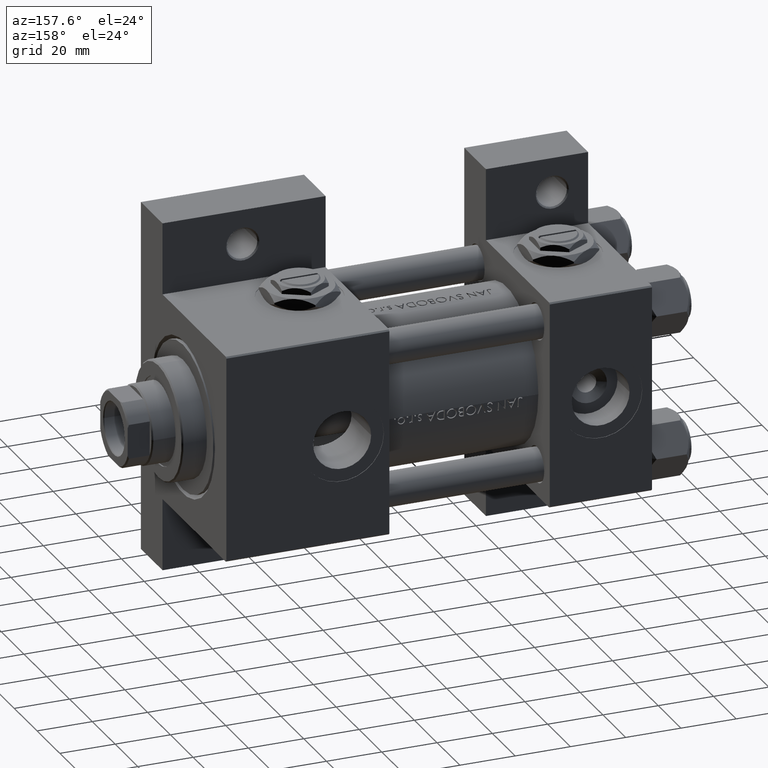
[diagram: clean part render]
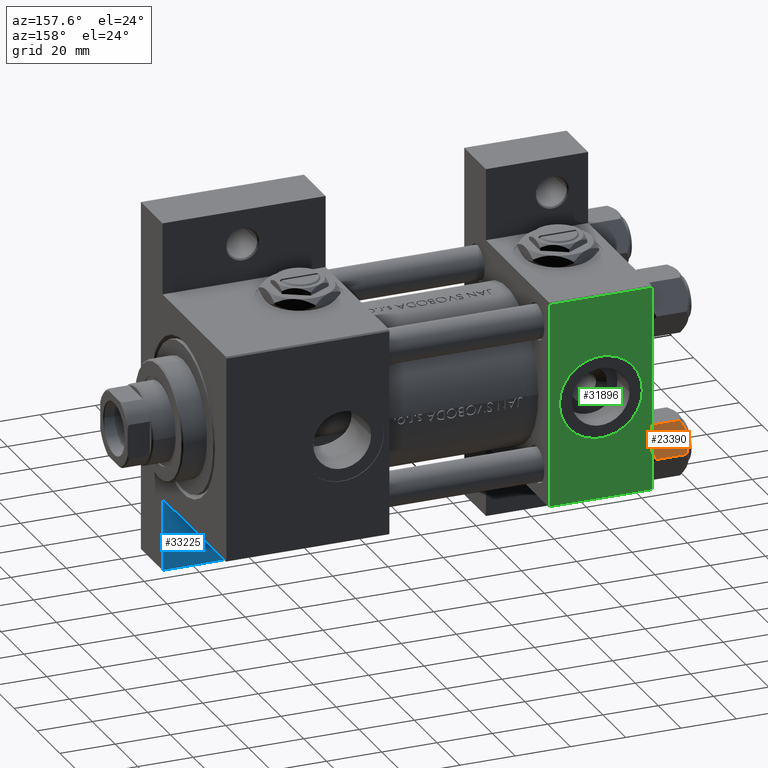
[diagram: same view with three faces highlighted in distinct colors, each labeled with its STEP entity id]
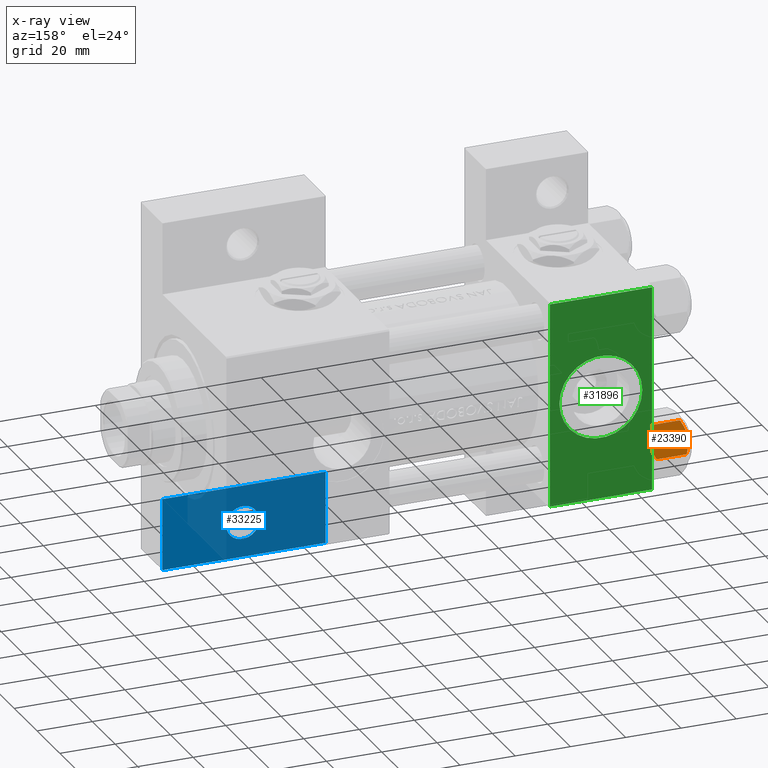
[diagram: x-ray of the same camera — body ghosted, the three highlighted faces saturated]
A machine part, auxiliary view with three faces highlighted in distinct colors.
The next image is the same camera in x-ray (body ghosted, the three faces saturated) — at least one of them is partly hidden behind the body in this view.
Their STEP definitions:

[orange] entity #23390 — the highlighted planar face has unit normal (0, -0.866, -0.5).
#18 = CARTESIAN_POINT ( 'NONE',  ( -10.69662495661650325, 1.599332489581336780, -0.7114554706434498277 ) ) ;
#729 = VECTOR ( 'NONE', #25414, 1000.000000000000000 ) ;
#730 = CARTESIAN_POINT ( 'NONE',  ( -5.809999999999997833, 10.06321519197518022, -12.44321519197518455 ) ) ;
#2301 = EDGE_CURVE ( 'NONE', #19643, #12234, #38741, .T. ) ;
#2560 = CARTESIAN_POINT ( 'NONE',  ( -11.61999999999999922, 6.288644352490894150E-15, -14.00000000000000000 ) ) ;
#3538 = PLANE ( 'NONE',  #7698 ) ;
#4209 = ORIENTED_EDGE ( 'NONE', *, *, #19684, .T. ) ;
#6366 = CARTESIAN_POINT ( 'NONE',  ( -5.809999999999997833, 10.06321519197518022, -1.556784808024815447 ) ) ;
#6718 = CARTESIAN_POINT ( 'NONE',  ( -5.809999999999997833, 10.06321519197518022, -1.556784808024815447 ) ) ;
#7129 = LINE ( 'NONE', #29691, #42000 ) ;
#7213 = CARTESIAN_POINT ( 'NONE',  ( -5.809999999999997833, 10.06321519197518022, -12.44321519197518455 ) ) ;
#7698 = AXIS2_PLACEMENT_3D ( 'NONE', #2560, #10588, #33392 ) ;
#8016 = EDGE_CURVE ( 'NONE', #12234, #28816, #30585, .T. ) ;
#9290 = CARTESIAN_POINT ( 'NONE',  ( -8.715000000000001634, 5.031607595987591885, 0.000000000000000000 ) ) ;
#9586 = EDGE_CURVE ( 'NONE', #20137, #46045, #22152, .T. ) ;
#10250 = CARTESIAN_POINT ( 'NONE',  ( -6.731401448974986934, 8.467301068182916168, -0.7141438259524663934 ) ) ;
#10588 = DIRECTION ( 'NONE',  ( 0.8660254037844385966, -0.5000000000000002220, 0.000000000000000000 ) ) ;
#12234 = VERTEX_POINT ( 'NONE', #42717 ) ;
#12841 = CARTESIAN_POINT ( 'NONE',  ( -8.460569896449618099, 5.472293462311865753, 2.204732646931026331E-15 ) ) ;
#13168 = ORIENTED_EDGE ( 'NONE', *, *, #47236, .F. ) ;
#13487 = CARTESIAN_POINT ( 'NONE',  ( -9.729165168613649328, 3.275021996682086822, -13.80960203119265906 ) ) ;
#14859 = CARTESIAN_POINT ( 'NONE',  ( -11.61999999999999922, 6.301834029662224111E-15, -1.556784808024812117 ) ) ;
#15109 = CARTESIAN_POINT ( 'NONE',  ( -9.716999946243698005, 3.296092779912228377, -0.1545239700039844066 ) ) ;
#19080 = CARTESIAN_POINT ( 'NONE',  ( -8.715000000000001634, 5.031607595987591885, -14.00000000000000000 ) ) ;
#19421 = CARTESIAN_POINT ( 'NONE',  ( -11.61999999999999922, 6.301834029662224111E-15, -1.556784808024812117 ) ) ;
#19643 = VERTEX_POINT ( 'NONE', #29439 ) ;
#19684 = EDGE_CURVE ( 'NONE', #19643, #46045, #7129, .T. ) ;
#20137 = VERTEX_POINT ( 'NONE', #9290 ) ;
#21736 = CARTESIAN_POINT ( 'NONE',  ( -9.227666995912096937, 4.143642311704127223, -13.96005881939308857 ) ) ;
#21770 = CARTESIAN_POINT ( 'NONE',  ( -7.455303369716805406, 7.213466161761384221, -0.3002673809867381083 ) ) ;
#22014 = CARTESIAN_POINT ( 'NONE',  ( -8.202333004087897450, 5.919572880271055659, -0.03994118060690795419 ) ) ;
#22152 = B_SPLINE_CURVE_WITH_KNOTS ( 'NONE', 3,
 ( #34398, #34639, #15109, #18, #45422, #14859 ),
 .UNSPECIFIED., .F., .F.,
 ( 4, 2, 4 ),
 ( 0.006022845781655589842, 0.009013049135303635023, 0.01200325248895167847 ),
 .UNSPECIFIED. ) ;
#22426 = DIRECTION ( 'NONE',  ( -0.000000000000000000, -0.000000000000000000, 1.000000000000000000 ) ) ;
#23390 = ADVANCED_FACE ( 'NONE', ( #44674 ), #3538, .F. ) ;
#24401 = B_SPLINE_CURVE_WITH_KNOTS ( 'NONE', 3,
 ( #6718, #27865, #10250, #21770, #29286, #22014, #12841, #37069 ),
 .UNSPECIFIED., .F., .F.,
 ( 4, 2, 2, 4 ),
 ( 2.544312114902182352E-07, 0.003011550106433540791, 0.004517197944044565316, 0.006022845781655589842 ),
 .UNSPECIFIED. ) ;
#25414 = DIRECTION ( 'NONE',  ( -0.000000000000000000, -0.000000000000000000, 1.000000000000000000 ) ) ;
#25899 = LINE ( 'NONE', #44216, #729 ) ;
#27463 = ORIENTED_EDGE ( 'NONE', *, *, #8016, .F. ) ;
#27865 = CARTESIAN_POINT ( 'NONE',  ( -6.265545725125282850, 9.274186850887385702, -1.101239082899535537 ) ) ;
#28026 = EDGE_LOOP ( 'NONE', ( #43794, #4209, #48133, #37030, #13168, #27463 ) ) ;
#28511 = CARTESIAN_POINT ( 'NONE',  ( -8.969430103550378064, 4.590921729663314466, -14.00000000000000178 ) ) ;
#28575 = EDGE_CURVE ( 'NONE', #41289, #20137, #24401, .T. ) ;
#28816 = VERTEX_POINT ( 'NONE', #7213 ) ;
#29286 = CARTESIAN_POINT ( 'NONE',  ( -7.700834831386344170, 6.788193195293096949, -0.1903979688073418330 ) ) ;
#29439 = CARTESIAN_POINT ( 'NONE',  ( -11.61999999999999922, 6.270720075510426383E-15, -12.44321519197518811 ) ) ;
#29691 = CARTESIAN_POINT ( 'NONE',  ( -11.61999999999999922, 6.288644352490894150E-15, -14.00000000000000000 ) ) ;
#30585 = B_SPLINE_CURVE_WITH_KNOTS ( 'NONE', 3,
 ( #19080, #42874, #31079, #31580, #38621, #730 ),
 .UNSPECIFIED., .F., .F.,
 ( 4, 2, 4 ),
 ( 0.006022845781655582903, 0.009013049135303629819, 0.01200325248895167847 ),
 .UNSPECIFIED. ) ;
#31079 = CARTESIAN_POINT ( 'NONE',  ( -7.713000053756302599, 6.767122412062954062, -13.84547602999601601 ) ) ;
#31580 = CARTESIAN_POINT ( 'NONE',  ( -6.733375043383492020, 8.463882702393842550, -13.28854452935654962 ) ) ;
#33392 = DIRECTION ( 'NONE',  ( 0.5000000000000001110, 0.8660254037844384856, 0.000000000000000000 ) ) ;
#34398 = CARTESIAN_POINT ( 'NONE',  ( -8.715000000000001634, 5.031607595987591885, 0.000000000000000000 ) ) ;
#34639 = CARTESIAN_POINT ( 'NONE',  ( -9.220295946303428636, 4.156409344131454020, 2.043043468777371629E-15 ) ) ;
#36533 = CARTESIAN_POINT ( 'NONE',  ( -8.715000000000001634, 5.031607595987591885, -14.00000000000000000 ) ) ;
#36797 = CARTESIAN_POINT ( 'NONE',  ( -11.61999999999999922, 6.270720075510426383E-15, -12.44321519197518811 ) ) ;
#37030 = ORIENTED_EDGE ( 'NONE', *, *, #28575, .F. ) ;
#37069 = CARTESIAN_POINT ( 'NONE',  ( -8.715000000000001634, 5.031607595987591885, 0.000000000000000000 ) ) ;
#38621 = CARTESIAN_POINT ( 'NONE',  ( -6.265018354709776638, 9.275100283241455301, -12.89823354668505218 ) ) ;
#38741 = B_SPLINE_CURVE_WITH_KNOTS ( 'NONE', 3,
 ( #36797, #47812, #47562, #43814, #13487, #21736, #28511, #36533 ),
 .UNSPECIFIED., .F., .F.,
 ( 4, 2, 2, 4 ),
 ( 2.544312114905218436E-07, 0.003011550106433537755, 0.004517197944044560980, 0.006022845781655582903 ),
 .UNSPECIFIED. ) ;
#41289 = VERTEX_POINT ( 'NONE', #6366 ) ;
#42000 = VECTOR ( 'NONE', #22426, 1000.000000000000000 ) ;
#42717 = CARTESIAN_POINT ( 'NONE',  ( -8.715000000000001634, 5.031607595987591885, -14.00000000000000000 ) ) ;
#42874 = CARTESIAN_POINT ( 'NONE',  ( -8.209704053696567527, 5.906805847843725310, -14.00000000000000533 ) ) ;
#43794 = ORIENTED_EDGE ( 'NONE', *, *, #2301, .F. ) ;
#43814 = CARTESIAN_POINT ( 'NONE',  ( -9.974696630283190757, 2.849749030213795109, -13.69973261901325934 ) ) ;
#44216 = CARTESIAN_POINT ( 'NONE',  ( -5.809999999999997833, 10.06321519197518022, -14.00000000000000000 ) ) ;
#44674 = FACE_OUTER_BOUND ( 'NONE', #28026, .T. ) ;
#45422 = CARTESIAN_POINT ( 'NONE',  ( -11.16498164529022041, 0.7881149087337345760, -1.101766453314951821 ) ) ;
#46045 = VERTEX_POINT ( 'NONE', #19421 ) ;
#47236 = EDGE_CURVE ( 'NONE', #28816, #41289, #25899, .T. ) ;
#47562 = CARTESIAN_POINT ( 'NONE',  ( -10.69859855102501101, 1.595914123792268491, -13.28585617404753627 ) ) ;
#47812 = CARTESIAN_POINT ( 'NONE',  ( -11.16445427487471598, 0.7890283410878030645, -12.89876091710047312 ) ) ;
#48133 = ORIENTED_EDGE ( 'NONE', *, *, #9586, .F. ) ;

[blue] entity #33225 — the highlighted planar face has unit normal (0, 1, 0).
#249 = VERTEX_POINT ( 'NONE', #47050 ) ;
#1492 = CARTESIAN_POINT ( 'NONE',  ( 124.9999999999999858, 50.99999999999999289, -18.50000000000000000 ) ) ;
#1510 = EDGE_CURVE ( 'NONE', #6928, #249, #37270, .T. ) ;
#2362 = VECTOR ( 'NONE', #20115, 1000.000000000000000 ) ;
#2952 = EDGE_CURVE ( 'NONE', #34624, #47061, #25155, .T. ) ;
#3716 = EDGE_LOOP ( 'NONE', ( #27171, #44524, #29097, #41958 ) ) ;
#6480 = FACE_OUTER_BOUND ( 'NONE', #3716, .T. ) ;
#6928 = VERTEX_POINT ( 'NONE', #48895 ) ;
#7766 = CARTESIAN_POINT ( 'NONE',  ( 95.00000000000000000, 63.50000000000000000, -18.50000000000000000 ) ) ;
#8612 = VERTEX_POINT ( 'NONE', #23030 ) ;
#9943 = AXIS2_PLACEMENT_3D ( 'NONE', #1492, #13794, #10027 ) ;
#10027 = DIRECTION ( 'NONE',  ( 1.000000000000000000, 0.000000000000000000, 0.000000000000000000 ) ) ;
#10937 = CARTESIAN_POINT ( 'NONE',  ( 95.00000000000000000, 37.50000000000000000, -18.50000000000000000 ) ) ;
#10981 = FACE_BOUND ( 'NONE', #31866, .T. ) ;
#12040 = CARTESIAN_POINT ( 'NONE',  ( 119.0004999999999313, 50.99999999999999289, -18.50000000000000000 ) ) ;
#13794 = DIRECTION ( 'NONE',  ( 0.000000000000000000, -0.000000000000000000, -1.000000000000000000 ) ) ;
#15374 = LINE ( 'NONE', #30641, #27566 ) ;
#15604 = DIRECTION ( 'NONE',  ( -1.067522139062650671E-15, -1.000000000000000000, 0.000000000000000000 ) ) ;
#16097 = CARTESIAN_POINT ( 'NONE',  ( 124.9999999999999858, 50.99999999999999289, -18.50000000000000000 ) ) ;
#16356 = CARTESIAN_POINT ( 'NONE',  ( 95.00000000000000000, 63.50000000000000000, -18.50000000000000000 ) ) ;
#19265 = EDGE_CURVE ( 'NONE', #33096, #8612, #15374, .T. ) ;
#19469 = ORIENTED_EDGE ( 'NONE', *, *, #46563, .T. ) ;
#20115 = DIRECTION ( 'NONE',  ( -0.000000000000000000, 1.000000000000000000, -0.000000000000000000 ) ) ;
#23030 = CARTESIAN_POINT ( 'NONE',  ( 154.0000000000000000, 63.50000000000000000, -18.50000000000000000 ) ) ;
#23142 = AXIS2_PLACEMENT_3D ( 'NONE', #16097, #32114, #27606 ) ;
#23614 = LINE ( 'NONE', #16356, #2362 ) ;
#25155 = CIRCLE ( 'NONE', #9943, 5.999500000000060673 ) ;
#25553 = PLANE ( 'NONE',  #32759 ) ;
#26028 = DIRECTION ( 'NONE',  ( -0.000000000000000000, 0.000000000000000000, 1.000000000000000000 ) ) ;
#26277 = DIRECTION ( 'NONE',  ( 1.000000000000000000, 0.000000000000000000, 0.000000000000000000 ) ) ;
#27171 = ORIENTED_EDGE ( 'NONE', *, *, #34280, .F. ) ;
#27566 = VECTOR ( 'NONE', #45935, 1000.000000000000000 ) ;
#27606 = DIRECTION ( 'NONE',  ( 1.000000000000000000, 0.000000000000000000, 0.000000000000000000 ) ) ;
#29097 = ORIENTED_EDGE ( 'NONE', *, *, #47298, .F. ) ;
#30195 = CARTESIAN_POINT ( 'NONE',  ( 130.9995000000000118, 50.99999999999999289, -18.50000000000000000 ) ) ;
#30385 = LINE ( 'NONE', #31129, #35976 ) ;
#30641 = CARTESIAN_POINT ( 'NONE',  ( 95.00000000000000000, 63.50000000000000000, -18.50000000000000000 ) ) ;
#31129 = CARTESIAN_POINT ( 'NONE',  ( 154.0000000000000000, 63.50000000000000000, -18.50000000000000000 ) ) ;
#31866 = EDGE_LOOP ( 'NONE', ( #19469, #34508 ) ) ;
#32114 = DIRECTION ( 'NONE',  ( 0.000000000000000000, -0.000000000000000000, -1.000000000000000000 ) ) ;
#32759 = AXIS2_PLACEMENT_3D ( 'NONE', #41569, #26028, #26277 ) ;
#33096 = VERTEX_POINT ( 'NONE', #7766 ) ;
#33225 = ADVANCED_FACE ( 'NONE', ( #10981, #6480 ), #25553, .T. ) ;
#34240 = DIRECTION ( 'NONE',  ( -1.000000000000000000, -1.176083712526649442E-16, -0.000000000000000000 ) ) ;
#34280 = EDGE_CURVE ( 'NONE', #249, #33096, #23614, .T. ) ;
#34508 = ORIENTED_EDGE ( 'NONE', *, *, #2952, .T. ) ;
#34624 = VERTEX_POINT ( 'NONE', #12040 ) ;
#35976 = VECTOR ( 'NONE', #15604, 1000.000000000000000 ) ;
#37270 = LINE ( 'NONE', #10937, #45921 ) ;
#41569 = CARTESIAN_POINT ( 'NONE',  ( 0.000000000000000000, 0.000000000000000000, -18.50000000000000000 ) ) ;
#41958 = ORIENTED_EDGE ( 'NONE', *, *, #19265, .F. ) ;
#44524 = ORIENTED_EDGE ( 'NONE', *, *, #1510, .F. ) ;
#44768 = CIRCLE ( 'NONE', #23142, 5.999500000000060673 ) ;
#45921 = VECTOR ( 'NONE', #34240, 1000.000000000000000 ) ;
#45935 = DIRECTION ( 'NONE',  ( 1.000000000000000000, 0.000000000000000000, 0.000000000000000000 ) ) ;
#46563 = EDGE_CURVE ( 'NONE', #47061, #34624, #44768, .T. ) ;
#47050 = CARTESIAN_POINT ( 'NONE',  ( 95.00000000000000000, 37.50000000000000000, -18.50000000000000355 ) ) ;
#47061 = VERTEX_POINT ( 'NONE', #30195 ) ;
#47298 = EDGE_CURVE ( 'NONE', #8612, #6928, #30385, .T. ) ;
#48895 = CARTESIAN_POINT ( 'NONE',  ( 153.9999999999999716, 37.50000000000000711, -18.50000000000000000 ) ) ;

[green] entity #31896 — the highlighted planar face has unit normal (0, -1, -0).
#106 = DIRECTION ( 'NONE',  ( 0.000000000000000000, -1.000000000000000000, -9.251858538542971581E-17 ) ) ;
#731 = CARTESIAN_POINT ( 'NONE',  ( 0.000000000000000000, 36.99999999999999289, 37.50000000000000000 ) ) ;
#820 = VERTEX_POINT ( 'NONE', #35978 ) ;
#2946 = VECTOR ( 'NONE', #20654, 1000.000000000000000 ) ;
#4181 = CARTESIAN_POINT ( 'NONE',  ( 0.000000000000000000, -37.00000000000000711, 37.49999999999999289 ) ) ;
#4293 = CIRCLE ( 'NONE', #28424, 15.00000000000000355 ) ;
#5107 = CARTESIAN_POINT ( 'NONE',  ( 0.000000000000000000, 36.99999999999999289, 37.50000000000000000 ) ) ;
#5848 = DIRECTION ( 'NONE',  ( 0.000000000000000000, 9.251858538542971581E-17, -1.000000000000000000 ) ) ;
#6224 = DIRECTION ( 'NONE',  ( 1.000000000000000000, 0.000000000000000000, 0.000000000000000000 ) ) ;
#6347 = PLANE ( 'NONE',  #25496 ) ;
#8595 = CARTESIAN_POINT ( 'NONE',  ( 0.000000000000000000, 37.49999999999999289, 37.50000000000000000 ) ) ;
#9259 = EDGE_CURVE ( 'NONE', #20359, #40917, #47709, .T. ) ;
#12614 = DIRECTION ( 'NONE',  ( 0.000000000000000000, -1.000000000000000000, -9.251858538542971581E-17 ) ) ;
#13058 = DIRECTION ( 'NONE',  ( 1.000000000000000000, 0.000000000000000000, 0.000000000000000000 ) ) ;
#13640 = ORIENTED_EDGE ( 'NONE', *, *, #16757, .F. ) ;
#14027 = EDGE_CURVE ( 'NONE', #40917, #17834, #31152, .T. ) ;
#15789 = EDGE_CURVE ( 'NONE', #17834, #820, #32293, .T. ) ;
#16757 = EDGE_CURVE ( 'NONE', #25911, #21093, #4293, .T. ) ;
#17217 = VECTOR ( 'NONE', #48079, 1000.000000000000000 ) ;
#17324 = DIRECTION ( 'NONE',  ( 0.000000000000000000, 0.000000000000000000, 1.000000000000000000 ) ) ;
#17834 = VERTEX_POINT ( 'NONE', #4181 ) ;
#19207 = LINE ( 'NONE', #34488, #33653 ) ;
#20047 = CARTESIAN_POINT ( 'NONE',  ( 33.50000000000000000, -5.204170427930421283E-15, 37.50000000000000000 ) ) ;
#20359 = VERTEX_POINT ( 'NONE', #35082 ) ;
#20632 = CARTESIAN_POINT ( 'NONE',  ( 3.499999999999997780, -3.367200229209391300E-15, 37.50000000000000000 ) ) ;
#20654 = DIRECTION ( 'NONE',  ( -1.000000000000000000, 0.000000000000000000, 0.000000000000000000 ) ) ;
#20773 = CARTESIAN_POINT ( 'NONE',  ( 37.00000000000000000, -37.00000000000000711, 37.49999999999999289 ) ) ;
#21093 = VERTEX_POINT ( 'NONE', #20047 ) ;
#21764 = CARTESIAN_POINT ( 'NONE',  ( 18.50000000000000000, -5.204170427930421283E-15, 37.50000000000000000 ) ) ;
#22009 = DIRECTION ( 'NONE',  ( 0.000000000000000000, 0.000000000000000000, 1.000000000000000000 ) ) ;
#23780 = EDGE_LOOP ( 'NONE', ( #42321, #13640 ) ) ;
#25496 = AXIS2_PLACEMENT_3D ( 'NONE', #32424, #5848, #44211 ) ;
#25911 = VERTEX_POINT ( 'NONE', #20632 ) ;
#26416 = EDGE_CURVE ( 'NONE', #21093, #25911, #33407, .T. ) ;
#26853 = ORIENTED_EDGE ( 'NONE', *, *, #15789, .T. ) ;
#27485 = EDGE_LOOP ( 'NONE', ( #35201, #26853, #41975, #37298 ) ) ;
#28424 = AXIS2_PLACEMENT_3D ( 'NONE', #21764, #22009, #6224 ) ;
#31152 = LINE ( 'NONE', #8595, #42208 ) ;
#31896 = ADVANCED_FACE ( 'NONE', ( #40209, #47969 ), #6347, .F. ) ;
#32293 = LINE ( 'NONE', #20773, #17217 ) ;
#32424 = CARTESIAN_POINT ( 'NONE',  ( 37.00000000000000000, 37.49999999999999289, 37.50000000000000000 ) ) ;
#33407 = CIRCLE ( 'NONE', #34259, 15.00000000000000355 ) ;
#33653 = VECTOR ( 'NONE', #106, 1000.000000000000000 ) ;
#34259 = AXIS2_PLACEMENT_3D ( 'NONE', #47387, #17324, #13058 ) ;
#34488 = CARTESIAN_POINT ( 'NONE',  ( 37.00000000000000000, 37.49999999999999289, 37.50000000000000000 ) ) ;
#35082 = CARTESIAN_POINT ( 'NONE',  ( 37.00000000000000000, 36.99999999999999289, 37.50000000000000000 ) ) ;
#35201 = ORIENTED_EDGE ( 'NONE', *, *, #14027, .T. ) ;
#35978 = CARTESIAN_POINT ( 'NONE',  ( 37.00000000000000000, -37.00000000000000711, 37.49999999999999289 ) ) ;
#36156 = EDGE_CURVE ( 'NONE', #20359, #820, #19207, .T. ) ;
#37298 = ORIENTED_EDGE ( 'NONE', *, *, #9259, .T. ) ;
#40209 = FACE_BOUND ( 'NONE', #23780, .T. ) ;
#40917 = VERTEX_POINT ( 'NONE', #731 ) ;
#41975 = ORIENTED_EDGE ( 'NONE', *, *, #36156, .F. ) ;
#42208 = VECTOR ( 'NONE', #12614, 1000.000000000000000 ) ;
#42321 = ORIENTED_EDGE ( 'NONE', *, *, #26416, .F. ) ;
#44211 = DIRECTION ( 'NONE',  ( 0.000000000000000000, 1.000000000000000000, 9.251858538542971581E-17 ) ) ;
#47387 = CARTESIAN_POINT ( 'NONE',  ( 18.50000000000000000, -5.204170427930421283E-15, 37.50000000000000000 ) ) ;
#47709 = LINE ( 'NONE', #5107, #2946 ) ;
#47969 = FACE_OUTER_BOUND ( 'NONE', #27485, .T. ) ;
#48079 = DIRECTION ( 'NONE',  ( 1.000000000000000000, 0.000000000000000000, 0.000000000000000000 ) ) ;